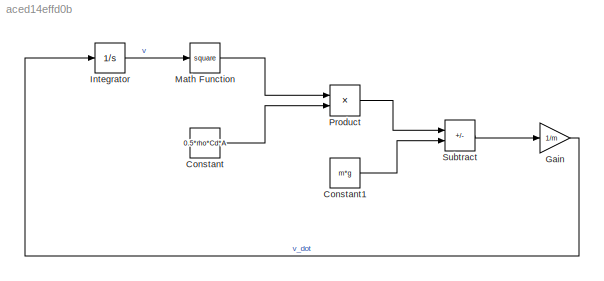
MODEL slx_aced14effd0b
KIND model
CONFIG AbsTol = auto
CONFIG EnableMultiTasking = off
CONFIG FixedStep = auto
CONFIG MaxStep = auto
CONFIG MinStep = auto
CONFIG RelTol = 1e-3
CONFIG SampleTimeConstraint = Unconstrained
CONFIG SolverName = VariableStepAuto
CONFIG StartFcn = learning.simulink.modelCallbacks.startFunction(gcs)
CONFIG StartTime = 0.0
CONFIG StopFcn = learning.simulink.modelCallbacks.stopFunction(gcs);
CONFIG StopTime = 10.0
WORKSPACE source: mxarray member
WORKSPACE courseObject: object (value not decoded)
WORKSPACE t_ans = [0 0.1 0.2 0.3 0.4 0.5 0.6 0.7 0.8 0.9 1 1.1 ... (101 elements, 101x1)]
WORKSPACE y_ans = [0 -0.000200950914521 -0.00120570548708 -0.00622947834396 -0.0313483418766 -0.156942565284 -0.784901893294 -1.76577331462 -2.7463838085 -3.72658860853 -4.70624318793 -5.68520334466 ... (107 elements, 107x1)]
WORKSPACE y_ans2 = [-10 -10.9727094721 -11.9438121188 -12.9131687504 -13.8806411923 -14.8460923624 -15.8093863468 -16.7703884748 -17.7289653912 -18.6849851282 -19.638317175 -20.5888325457 ... (101 elements, 101x1)]
BLOCK [Constant] Constant
  Value = 0.5*rho*Cd*A
BLOCK [Constant] Constant1
  Value = m*g
BLOCK [Gain] Gain
  Gain = 1/m
BLOCK [Integrator] Integrator
  InitialCondition = -10
BLOCK [Math] Math Function
  Operator = square
BLOCK [Product] Product
BLOCK [Sum] Subtract
  IconShape = rectangular
  Inputs = +-
LINE Constant1:1 -> Subtract:2
LINE Constant:1 -> Product:2
LINE Gain:1 -> Integrator:1
LINE Integrator:1 -> Math Function:1
LINE Math Function:1 -> Product:1
LINE Product:1 -> Subtract:1
LINE Subtract:1 -> Gain:1
